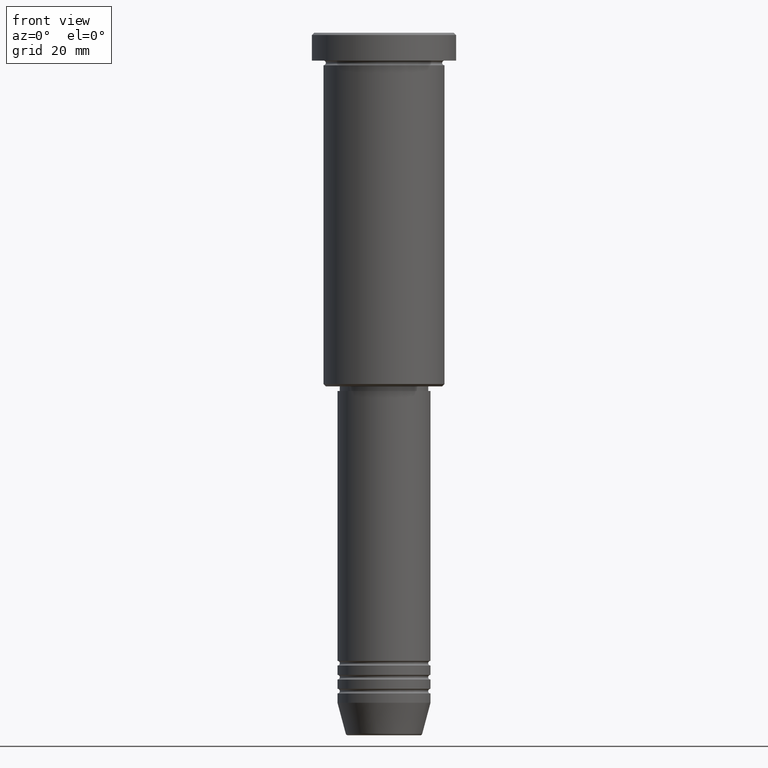
[diagram: clean part render]
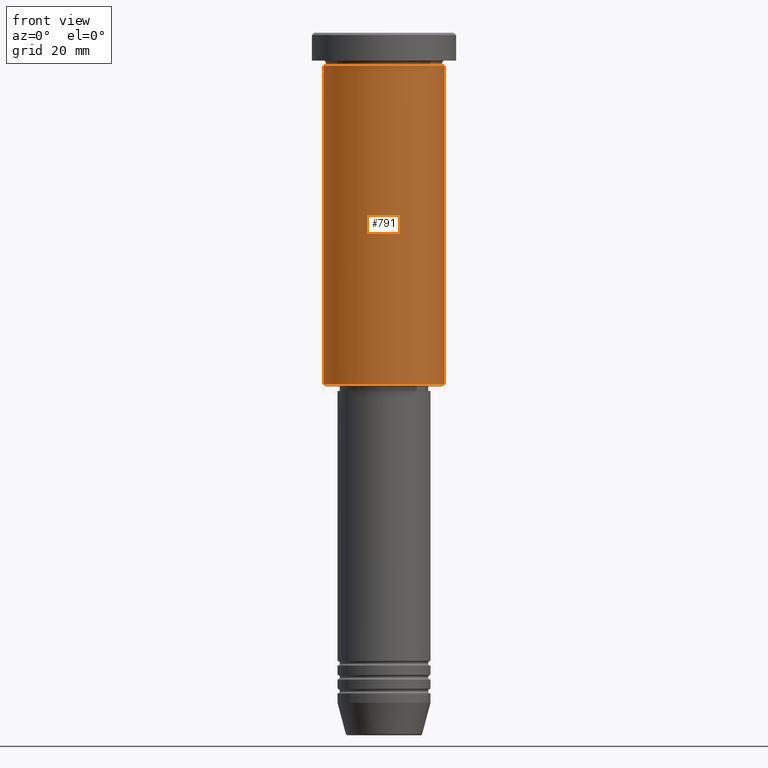
[diagram: same view with one face highlighted and labeled with its STEP entity id]
A machine part, front view. The second image highlights one B-rep face of the part: STEP entity #791.
In plain terms, the highlighted cylindrical surface (partial cylindrical patch) has radius 13 mm, axis along (-0, -0, 1).
Its self-contained STEP definition (entity closure, byte-faithful):
#1 = CARTESIAN_POINT ( 'NONE',  ( -13.00000000000000000, 1.592040838891559095E-15, -6.999999999999995559 ) ) ;
#25 = VECTOR ( 'NONE', #852, 1000.000000000000000 ) ;
#72 = DIRECTION ( 'NONE',  ( 1.000000000000000000, 0.000000000000000000, 0.000000000000000000 ) ) ;
#102 = CIRCLE ( 'NONE', #281, 13.00000000000000000 ) ;
#113 = LINE ( 'NONE', #495, #25 ) ;
#123 = AXIS2_PLACEMENT_3D ( 'NONE', #1029, #960, #1032 ) ;
#143 = VECTOR ( 'NONE', #1153, 1000.000000000000000 ) ;
#156 = CARTESIAN_POINT ( 'NONE',  ( 13.00000000000000000, 0.000000000000000000, -75.49999999999994316 ) ) ;
#160 = EDGE_CURVE ( 'NONE', #621, #584, #113, .T. ) ;
#281 = AXIS2_PLACEMENT_3D ( 'NONE', #394, #835, #372 ) ;
#309 = CARTESIAN_POINT ( 'NONE',  ( 0.000000000000000000, 0.000000000000000000, 0.000000000000000000 ) ) ;
#337 = ORIENTED_EDGE ( 'NONE', *, *, #160, .F. ) ;
#372 = DIRECTION ( 'NONE',  ( 1.000000000000000000, 0.000000000000000000, 0.000000000000000000 ) ) ;
#394 = CARTESIAN_POINT ( 'NONE',  ( 0.000000000000000000, 0.000000000000000000, -6.999999999999995559 ) ) ;
#435 = ORIENTED_EDGE ( 'NONE', *, *, #1093, .T. ) ;
#448 = LINE ( 'NONE', #552, #143 ) ;
#464 = EDGE_CURVE ( 'NONE', #911, #1097, #448, .T. ) ;
#483 = AXIS2_PLACEMENT_3D ( 'NONE', #309, #884, #72 ) ;
#495 = CARTESIAN_POINT ( 'NONE',  ( -13.00000000000000000, 1.592040838891559095E-15, 0.000000000000000000 ) ) ;
#497 = FACE_OUTER_BOUND ( 'NONE', #1148, .T. ) ;
#552 = CARTESIAN_POINT ( 'NONE',  ( 13.00000000000000000, 0.000000000000000000, 0.000000000000000000 ) ) ;
#584 = VERTEX_POINT ( 'NONE', #1 ) ;
#619 = EDGE_CURVE ( 'NONE', #584, #1097, #102, .T. ) ;
#621 = VERTEX_POINT ( 'NONE', #737 ) ;
#737 = CARTESIAN_POINT ( 'NONE',  ( -13.00000000000000000, 1.592040838891559095E-15, -75.49999999999994316 ) ) ;
#753 = ORIENTED_EDGE ( 'NONE', *, *, #619, .F. ) ;
#791 = ADVANCED_FACE ( 'NONE', ( #497 ), #858, .T. ) ;
#804 = CIRCLE ( 'NONE', #123, 13.00000000000000000 ) ;
#818 = ORIENTED_EDGE ( 'NONE', *, *, #464, .T. ) ;
#835 = DIRECTION ( 'NONE',  ( -0.000000000000000000, -0.000000000000000000, 1.000000000000000000 ) ) ;
#852 = DIRECTION ( 'NONE',  ( -0.000000000000000000, -0.000000000000000000, 1.000000000000000000 ) ) ;
#858 = CYLINDRICAL_SURFACE ( 'NONE', #483, 13.00000000000000000 ) ;
#865 = CARTESIAN_POINT ( 'NONE',  ( 13.00000000000000000, 0.000000000000000000, -6.999999999999995559 ) ) ;
#884 = DIRECTION ( 'NONE',  ( -0.000000000000000000, -0.000000000000000000, 1.000000000000000000 ) ) ;
#911 = VERTEX_POINT ( 'NONE', #156 ) ;
#960 = DIRECTION ( 'NONE',  ( -0.000000000000000000, -0.000000000000000000, 1.000000000000000000 ) ) ;
#1029 = CARTESIAN_POINT ( 'NONE',  ( 0.000000000000000000, 0.000000000000000000, -75.49999999999994316 ) ) ;
#1032 = DIRECTION ( 'NONE',  ( -1.000000000000000000, 0.000000000000000000, 0.000000000000000000 ) ) ;
#1093 = EDGE_CURVE ( 'NONE', #621, #911, #804, .T. ) ;
#1097 = VERTEX_POINT ( 'NONE', #865 ) ;
#1148 = EDGE_LOOP ( 'NONE', ( #337, #435, #818, #753 ) ) ;
#1153 = DIRECTION ( 'NONE',  ( -0.000000000000000000, -0.000000000000000000, 1.000000000000000000 ) ) ;